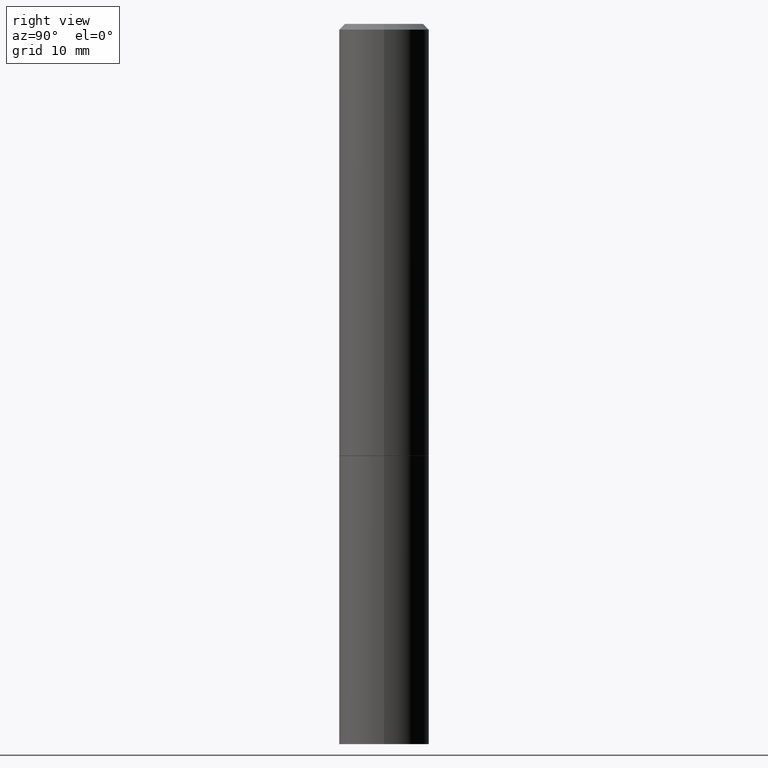
[diagram: clean part render]
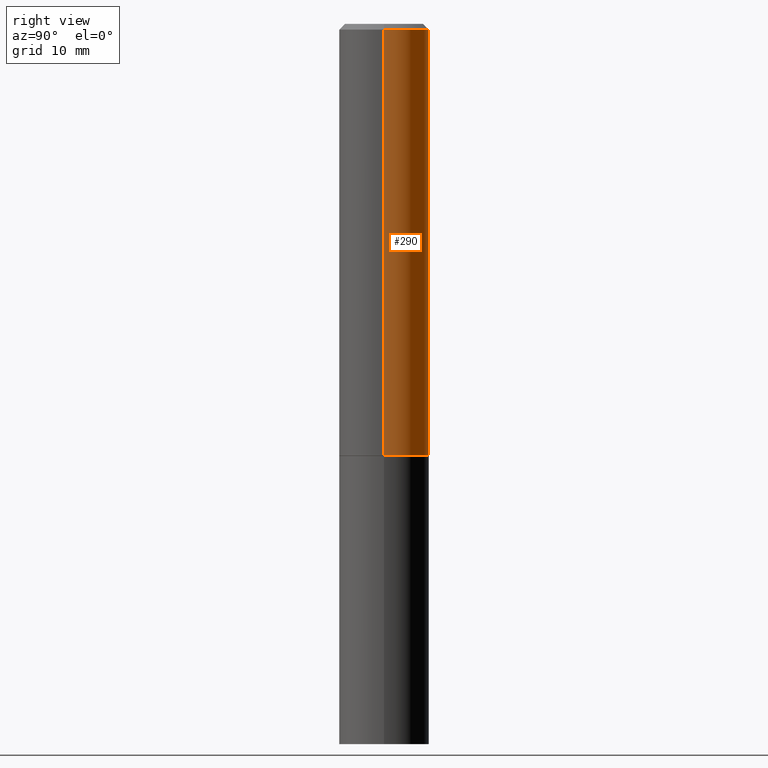
[diagram: same view with one face highlighted and labeled with its STEP entity id]
A machine part, right view. The second image highlights one B-rep face of the part: STEP entity #290.
In plain terms, the highlighted cylindrical surface (partial cylindrical patch) has radius 3.9687 mm, axis along (-0, 0, 1).
Its self-contained STEP definition (entity closure, byte-faithful):
#7 = CARTESIAN_POINT ( 'NONE',  ( 0.1562499999999999445, -1.091087918388478779E-15, 7.619026212181146173E-30 ) ) ;
#24 = CARTESIAN_POINT ( 'NONE',  ( 3.665757740471519853E-29, -5.233730526925875958E-15, -1.499000000000000110 ) ) ;
#31 = DIRECTION ( 'NONE',  ( -2.445468806185136877E-29, 3.491481338843145188E-15, 1.000000000000000000 ) ) ;
#37 = ORIENTED_EDGE ( 'NONE', *, *, #129, .T. ) ;
#52 = ORIENTED_EDGE ( 'NONE', *, *, #92, .F. ) ;
#62 = DIRECTION ( 'NONE',  ( -2.445468806185136877E-29, 3.491481338843145188E-15, 1.000000000000000000 ) ) ;
#64 = FACE_OUTER_BOUND ( 'NONE', #223, .T. ) ;
#65 = AXIS2_PLACEMENT_3D ( 'NONE', #219, #327, #77 ) ;
#75 = CIRCLE ( 'NONE', #279, 0.1562500000000000000 ) ;
#77 = DIRECTION ( 'NONE',  ( 1.000000000000000000, -6.982962677686266711E-15, 0.000000000000000000 ) ) ;
#82 = CARTESIAN_POINT ( 'NONE',  ( -0.1562499999999998612, 1.021258291611615284E-15, -0.02000000000000003511 ) ) ;
#90 = VERTEX_POINT ( 'NONE', #130 ) ;
#92 = EDGE_CURVE ( 'NONE', #152, #364, #220, .T. ) ;
#100 = ORIENTED_EDGE ( 'NONE', *, *, #101, .T. ) ;
#101 = EDGE_CURVE ( 'NONE', #177, #90, #75, .T. ) ;
#118 = DIRECTION ( 'NONE',  ( -2.445468806185136597E-29, 3.491481338843145583E-15, 1.000000000000000000 ) ) ;
#122 = VECTOR ( 'NONE', #31, 39.37007874015748143 ) ;
#129 = EDGE_CURVE ( 'NONE', #90, #364, #190, .T. ) ;
#130 = CARTESIAN_POINT ( 'NONE',  ( -0.1562500000000000000, -1.541557052226212102E-15, -1.499000000000000110 ) ) ;
#149 = VECTOR ( 'NONE', #62, 39.37007874015748143 ) ;
#152 = VERTEX_POINT ( 'NONE', #320 ) ;
#158 = CARTESIAN_POINT ( 'NONE',  ( -0.1562499999999999445, 1.110223024625156146E-15, -7.685836078523286956E-30 ) ) ;
#171 = CARTESIAN_POINT ( 'NONE',  ( 0.000000000000000000, 0.000000000000000000, 0.000000000000000000 ) ) ;
#177 = VERTEX_POINT ( 'NONE', #295 ) ;
#185 = DIRECTION ( 'NONE',  ( 1.000000000000000000, -6.982962677686269077E-15, 0.000000000000000000 ) ) ;
#190 = LINE ( 'NONE', #158, #122 ) ;
#215 = DIRECTION ( 'NONE',  ( -2.445468806185136597E-29, 3.491481338843145583E-15, 1.000000000000000000 ) ) ;
#217 = EDGE_CURVE ( 'NONE', #177, #152, #289, .T. ) ;
#219 = CARTESIAN_POINT ( 'NONE',  ( 4.890937612370281041E-31, -6.982962677686302702E-17, -0.02000000000000003511 ) ) ;
#220 = CIRCLE ( 'NONE', #65, 0.1562499999999998612 ) ;
#222 = ORIENTED_EDGE ( 'NONE', *, *, #217, .F. ) ;
#223 = EDGE_LOOP ( 'NONE', ( #100, #37, #52, #222 ) ) ;
#228 = DIRECTION ( 'NONE',  ( 1.000000000000000000, -6.982962677686266711E-15, 4.876176775795935232E-29 ) ) ;
#256 = CYLINDRICAL_SURFACE ( 'NONE', #323, 0.1562499999999999445 ) ;
#279 = AXIS2_PLACEMENT_3D ( 'NONE', #24, #215, #185 ) ;
#289 = LINE ( 'NONE', #7, #149 ) ;
#290 = ADVANCED_FACE ( 'NONE', ( #64 ), #256, .T. ) ;
#295 = CARTESIAN_POINT ( 'NONE',  ( 0.1562500000000000000, -6.324818445314355132E-15, -1.499000000000000110 ) ) ;
#320 = CARTESIAN_POINT ( 'NONE',  ( 0.1562499999999998612, -1.141782438928663922E-15, -0.02000000000000003511 ) ) ;
#323 = AXIS2_PLACEMENT_3D ( 'NONE', #171, #118, #228 ) ;
#327 = DIRECTION ( 'NONE',  ( -2.445468806185136597E-29, 3.491481338843145583E-15, 1.000000000000000000 ) ) ;
#364 = VERTEX_POINT ( 'NONE', #82 ) ;